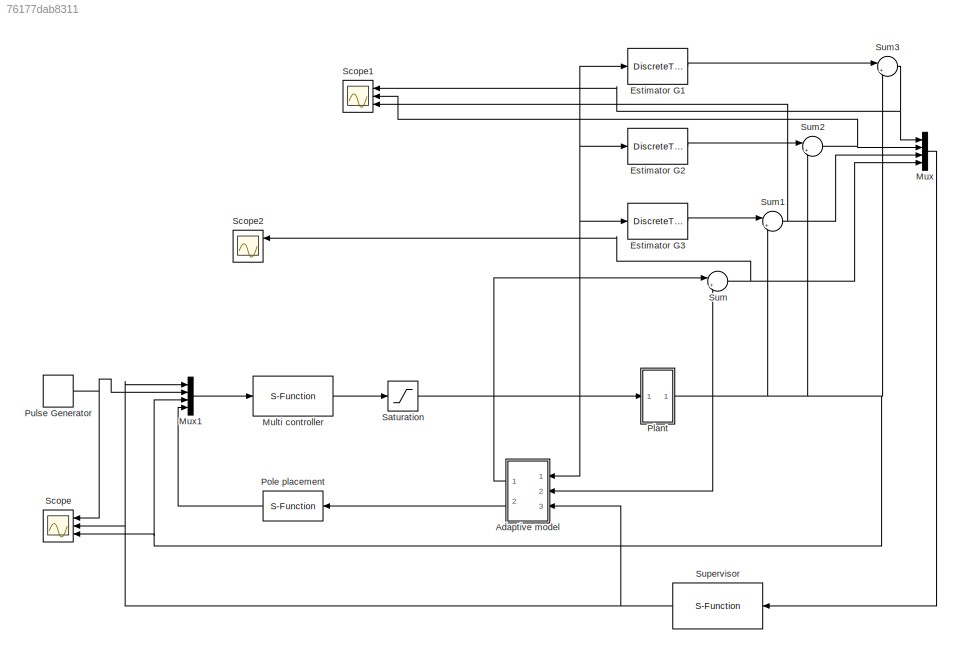
MODEL slx_76177dab8311
KIND model
CONFIG AbsTol = auto
CONFIG FixedStep = auto
CONFIG MaxStep = auto
CONFIG MinStep = auto
CONFIG RelTol = 1e-3
CONFIG SampleTimeConstraint = Unconstrained
CONFIG Solver = VariableStepAuto
CONFIG SolverMode = Auto
CONFIG SolverName = VariableStepAuto
CONFIG StartTime = 0.0
CONFIG StopTime = 300
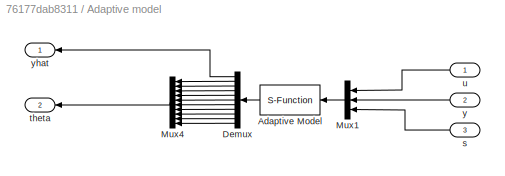
BLOCK [SubSystem] Adaptive model
  Ports = [3, 2]
  RequestExecContextInheritance = off
  Variant = off
BLOCK [S-Function] Adaptive model/Adaptive Model 
  EnableBusSupport = off
  FunctionName = aap
  Parameters = nA,nB,d
  Ports = [1, 1]
  SFunctionDeploymentMode = off
BLOCK [Demux] Adaptive model/Demux
  DisplayOption = bar
  Outputs = 11
  Ports = [1, 11]
BLOCK [Mux] Adaptive model/Mux1
  DisplayOption = bar
  Inputs = 3
  Ports = [3, 1]
BLOCK [Mux] Adaptive model/Mux4
  DisplayOption = bar
  Inputs = 10
  Ports = [10, 1]
BLOCK [Inport] Adaptive model/s
  IconDisplay = Port number
  Port = 3
BLOCK [Outport] Adaptive model/theta
  IconDisplay = Port number
  Port = 2
BLOCK [Inport] Adaptive model/u
  IconDisplay = Port number
BLOCK [Inport] Adaptive model/y
  IconDisplay = Port number
  Port = 2
BLOCK [Outport] Adaptive model/yhat
  IconDisplay = Port number
BLOCK [DiscreteTransferFcn] Estimator G1
  Denominator = G1.f
  InputPortMap = u0
  Numerator = G1.b
  Ports = [1, 1]
BLOCK [DiscreteTransferFcn] Estimator G2
  Denominator = G2.f
  InputPortMap = u0
  Numerator = G2.b
  Ports = [1, 1]
BLOCK [DiscreteTransferFcn] Estimator G3
  Denominator = G3.f
  InputPortMap = u0
  Numerator = G3.b
  Ports = [1, 1]
BLOCK [S-Function] Multi controller
  EnableBusSupport = off
  FunctionName = RST_switch
  Parameters = R1,S1,R2,S2,R3,S3,Ts,nr,ns,nt
  Ports = [1, 1]
  SFunctionDeploymentMode = off
BLOCK [Mux] Mux
  DisplayOption = bar
  Ports = [4, 1]
BLOCK [Mux] Mux1
  DisplayOption = bar
  Ports = [4, 1]
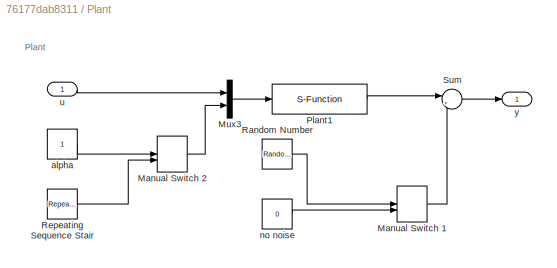
BLOCK [SubSystem] Plant 
  Ports = [1, 1]
  RequestExecContextInheritance = off
  Variant = off
BLOCK [ManualSwitch] Plant /Manual Switch 1
  CurrentSetting = 0
BLOCK [ManualSwitch] Plant /Manual Switch 2
  CurrentSetting = 0
BLOCK [Mux] Plant /Mux3
  DisplayOption = bar
  Inputs = 2
  Ports = [2, 1]
BLOCK [S-Function] Plant /Plant1
  EnableBusSupport = off
  FunctionName = LPV_Torsional
  Ports = [1, 1]
  SFunctionDeploymentMode = off
BLOCK [RandomNumber] Plant /Random Number
  SampleTime = Ts
  Variance = 0.01
BLOCK [Reference] Plant /Repeating Sequence Stair  REF=simulink/Sources/Repeating
Sequence
Stair
  Ports = [0, 1]
  SourceBlock = simulink/Sources/Repeating\nSequence\nStair
  SourceType = Repeating Sequence Stair
BLOCK [Sum] Plant /Sum
  IconShape = round
  InputSameDT = off
  Inputs = |++
  OutDataTypeStr = Inherit: Inherit via internal rule
  Ports = [2, 1]
  SaturateOnIntegerOverflow = off
BLOCK [Constant] Plant /alpha
BLOCK [Constant] Plant /no noise 
  Value = 0
BLOCK [Inport] Plant /u
  IconDisplay = Port number
BLOCK [Outport] Plant /y 
  IconDisplay = Port number
BLOCK [S-Function] Pole placement
  EnableBusSupport = off
  FunctionName = PP_rt
  Parameters = nA,nB,d,P,Hs,Hr,Ts
  Ports = [1, 1]
  SFunctionDeploymentMode = off
BLOCK [DiscretePulseGenerator] Pulse Generator
  Period = 25
  Ports = [0, 1]
  PulseType = Time based
  PulseWidth = 50
BLOCK [Saturate] Saturation
  InputPortMap = u0
  LowerLimit = -2
  Ports = [1, 1]
  UpperLimit = 2
BLOCK [Scope] Scope
  NumInputPorts = 3
  Ports = [3]
  ScopeSpecificationString = Simulink.scopes.TimeScopeBlockCfg('CurrentConfiguration', extmgr.ConfigurationSet(extmgr.Configuration('Core','General UI',true),extmgr.Configuration('Core','Source UI',true),extmgr.Configuration('Sources','WiredSimulink',true),extmgr.Configuration('Visuals','Time Domain',true,'SerializedDisplays',{struct('MinYLimReal','-17.87138','MaxYLimReal','20.62521','YLabelReal','','MinYLimMag','0.00000','Ma...<+1427ch>
BLOCK [Scope] Scope1
  NumInputPorts = 3
  Ports = [3]
  ScopeSpecificationString = Simulink.scopes.TimeScopeBlockCfg('CurrentConfiguration', extmgr.ConfigurationSet(extmgr.Configuration('Core','General UI',true),extmgr.Configuration('Core','Source UI',true),extmgr.Configuration('Sources','WiredSimulink',true,'DataLoggingVariableName','ScopeData1'),extmgr.Configuration('Visuals','Time Domain',true,'SerializedDisplays',{struct('MinYLimReal','-0.03399','MaxYLimReal','0.1077','YLabe...<+1439ch>
BLOCK [Scope] Scope2
  NumInputPorts = 3
  Ports = [3]
  ScopeSpecificationString = Simulink.scopes.TimeScopeBlockCfg('CurrentConfiguration', extmgr.ConfigurationSet(extmgr.Configuration('Core','General UI',true),extmgr.Configuration('Core','Source UI',true),extmgr.Configuration('Sources','WiredSimulink',true,'DataLoggingVariableName','ScopeData2'),extmgr.Configuration('Visuals','Time Domain',true,'SerializedDisplays',{struct('MinYLimReal','-0.0086','MaxYLimReal','0.00881','YLabe...<+1472ch>
BLOCK [Sum] Sum
  IconShape = round
  InputSameDT = off
  Inputs = |+-
  OutDataTypeStr = Inherit: Inherit via internal rule
  Ports = [2, 1]
  SaturateOnIntegerOverflow = off
BLOCK [Sum] Sum1
  IconShape = round
  InputSameDT = off
  Inputs = |+-
  OutDataTypeStr = Inherit: Inherit via internal rule
  Ports = [2, 1]
  SaturateOnIntegerOverflow = off
BLOCK [Sum] Sum2
  IconShape = round
  InputSameDT = off
  Inputs = |+-
  OutDataTypeStr = Inherit: Inherit via internal rule
  Ports = [2, 1]
  SaturateOnIntegerOverflow = off
BLOCK [Sum] Sum3
  IconShape = round
  InputSameDT = off
  Inputs = |+-
  OutDataTypeStr = Inherit: Inherit via internal rule
  Ports = [2, 1]
  SaturateOnIntegerOverflow = off
BLOCK [S-Function] Supervisor
  EnableBusSupport = off
  FunctionName = Switch_sigma
  Parameters = beta,lambda,DT
  Ports = [1, 1]
  SFunctionDeploymentMode = off
ANNOTATION Plant : Plant
LINE Adaptive model/Adaptive Model :1 -> Adaptive model/Demux:1
LINE Adaptive model/Demux:1 -> Adaptive model/yhat:1
LINE Adaptive model/Demux:10 -> Adaptive model/Mux4:9
LINE Adaptive model/Demux:11 -> Adaptive model/Mux4:10
LINE Adaptive model/Demux:2 -> Adaptive model/Mux4:1
LINE Adaptive model/Demux:3 -> Adaptive model/Mux4:2
LINE Adaptive model/Demux:4 -> Adaptive model/Mux4:3
LINE Adaptive model/Demux:5 -> Adaptive model/Mux4:4
LINE Adaptive model/Demux:6 -> Adaptive model/Mux4:5
LINE Adaptive model/Demux:7 -> Adaptive model/Mux4:6
LINE Adaptive model/Demux:8 -> Adaptive model/Mux4:7
LINE Adaptive model/Demux:9 -> Adaptive model/Mux4:8
LINE Adaptive model/Mux1:1 -> Adaptive model/Adaptive Model :1
LINE Adaptive model/Mux4:1 -> Adaptive model/theta:1
LINE Adaptive model/s:1 -> Adaptive model/Mux1:3
LINE Adaptive model/u:1 -> Adaptive model/Mux1:1
LINE Adaptive model/y:1 -> Adaptive model/Mux1:2
LINE Adaptive model:1 -> Sum:1
LINE Adaptive model:2 -> Pole placement:1
LINE Estimator G1:1 -> Sum3:1
LINE Estimator G2:1 -> Sum2:1
LINE Estimator G3:1 -> Sum1:1
LINE Multi controller:1 -> Saturation:1
LINE Mux1:1 -> Multi controller:1
LINE Mux:1 -> Supervisor:1
LINE Plant /Manual Switch 1:1 -> Plant /Sum:2
LINE Plant /Manual Switch 2:1 -> Plant /Mux3:2
LINE Plant /Mux3:1 -> Plant /Plant1:1
LINE Plant /Plant1:1 -> Plant /Sum:1
LINE Plant /Random Number:1 -> Plant /Manual Switch 1:1
LINE Plant /Repeating Sequence Stair:1 -> Plant /Manual Switch 2:2
LINE Plant /Sum:1 -> Plant /y :1
LINE Plant /alpha:1 -> Plant /Manual Switch 2:1
LINE Plant /no noise :1 -> Plant /Manual Switch 1:2
LINE Plant /u:1 -> Plant /Mux3:1
NET Plant :1 -> Adaptive model:2, Mux1:3, Scope:3, Sum1:2, Sum2:2, Sum3:2, Sum:2
LINE Pole placement:1 -> Mux1:4
NET Pulse Generator:1 -> Mux1:2, Scope:1
NET Saturation:1 -> Adaptive model:1, Estimator G1:1, Estimator G2:1, Estimator G3:1, Plant :1
NET Sum1:1 -> Mux:3, Scope1:3
NET Sum2:1 -> Mux:2, Scope1:2
NET Sum3:1 -> Mux:1, Scope1:1
NET Sum:1 -> Mux:4, Scope2:1
NET Supervisor:1 -> Adaptive model:3, Mux1:1, Scope:2
note: NET lines group one-source signal fan-out (src -> all destinations, sorted); 1:1 wires keep LINE
